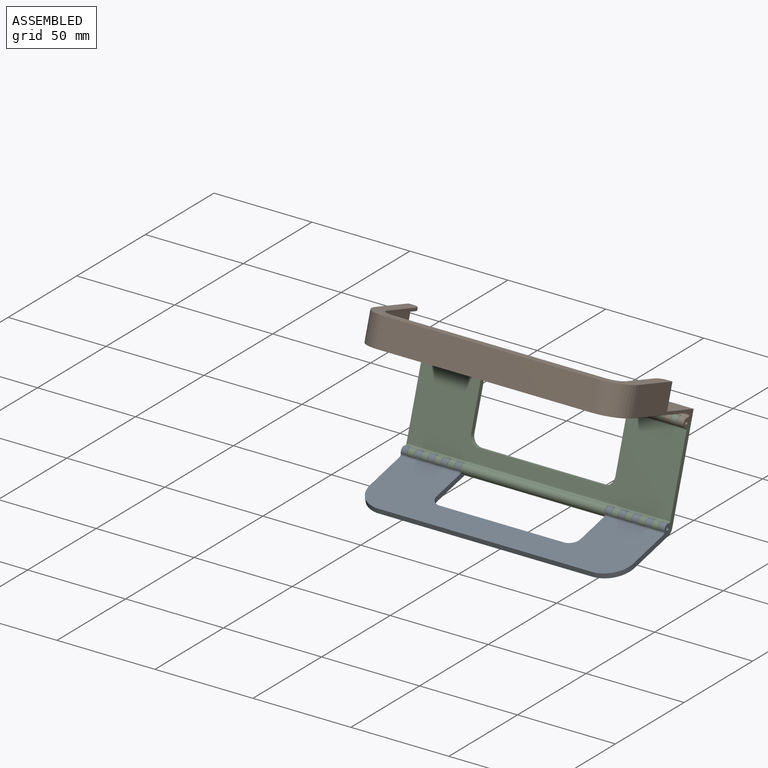
[diagram: assembled view]
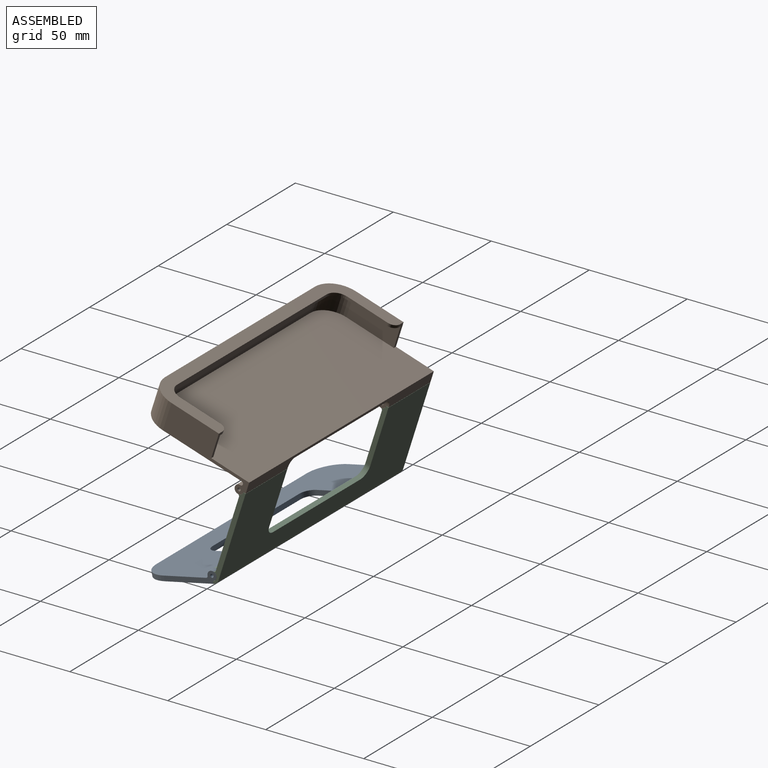
[diagram: assembled view, second angle]
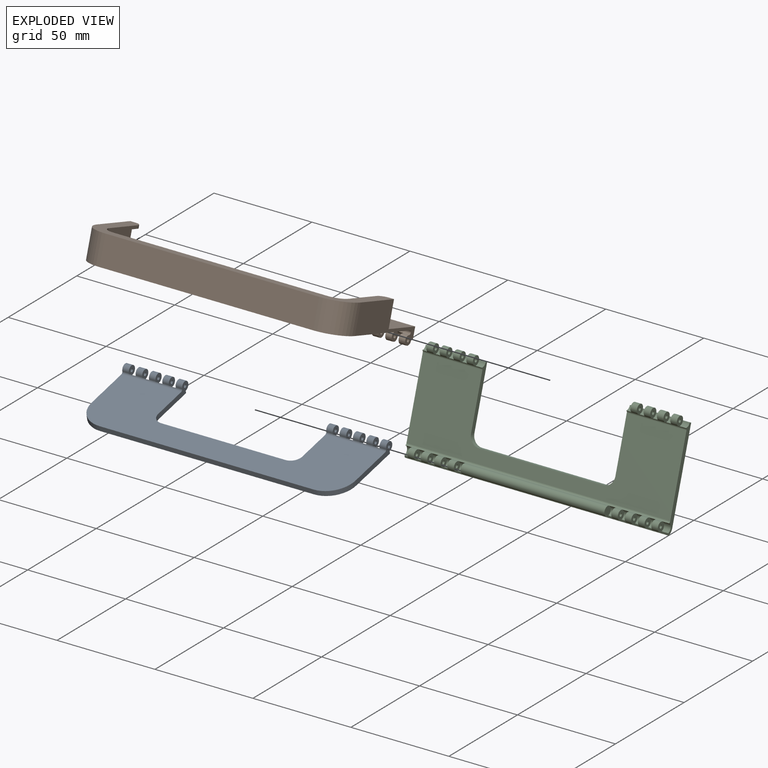
[diagram: exploded view]
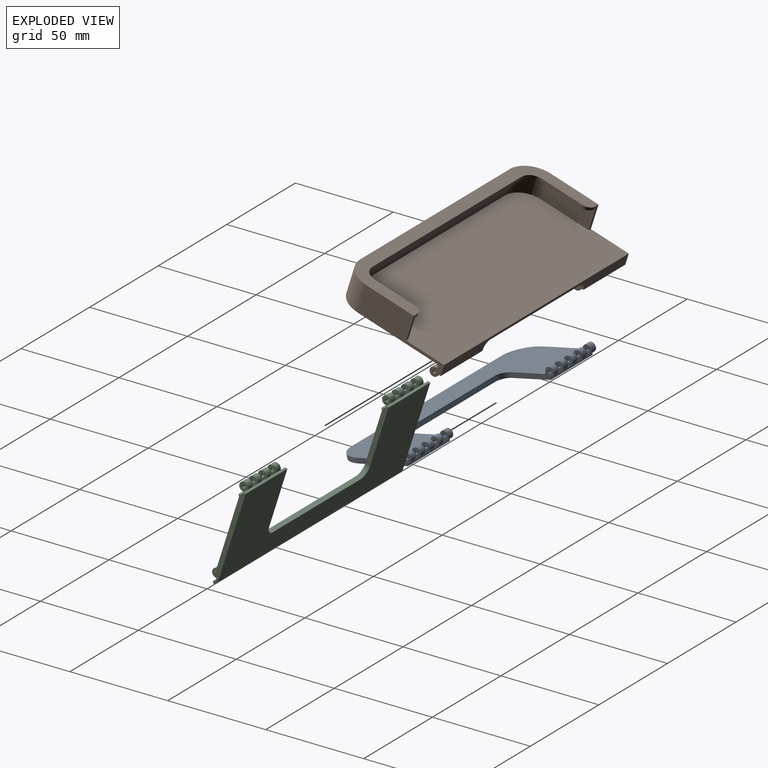
[diagram: exploded view, second angle]
ASSEMBLY  parts=3 mates=2
PART A: 70 faces, bbox 134.6x5.8x40.4 mm
  f0: plane 134.62x37.97mm, normal (0,1,0), area 3194.7mm2, adj f41,f43,f44,f51,f52,f53,f54,f65
  f1: cylinder r=0.84mm len=3.3mm, axis (-1,0,0), area 17.4mm2, adj f10,f52
  f2: cylinder r=2.29mm len=4.57mm, axis (-1,0,0), area 35.6mm2, adj f3,f10,f52,f55
  f3: cylinder r=1.02mm len=30.53mm, axis (-1,0,0), area 43.3mm2, adj f2,f7,f8,f9,f10,f11,f12,f13
  f4: cylinder r=0.84mm len=3.3mm, axis (-1,0,0), area 17.4mm2, adj f9,f14
  f5: cylinder r=0.84mm len=3.3mm, axis (-1,0,0), area 17.4mm2, adj f13,f18
  f6: cylinder r=0.84mm len=3.3mm, axis (-1,0,0), area 17.4mm2, adj f17,f49
  f7: cylinder r=2.29mm len=4.57mm, axis (-1,0,0), area 35.6mm2, adj f3,f9,f14,f59
  f8: cylinder r=2.39mm len=3.51mm, axis (-1,0,0), area 11.4mm2, adj f3,f9,f10,f54
  f9: plane 4.67x4.64mm, normal (1,0,0), area 14.5mm2, adj f3,f4,f7,f8,f54,f59
  f10: plane 4.67x4.64mm, normal (-1,0,0), area 14.5mm2, adj f1,f2,f3,f8,f54,f55
  f11: cylinder r=2.29mm len=4.57mm, axis (-1,0,0), area 35.6mm2, adj f3,f13,f18,f58
  f12: cylinder r=2.39mm len=3.51mm, axis (-1,0,0), area 11.4mm2, adj f3,f13,f14,f54
  f13: plane 4.67x4.64mm, normal (1,0,0), area 14.5mm2, adj f3,f5,f11,f12,f54,f58
  f14: plane 4.67x4.64mm, normal (-1,0,0), area 14.5mm2, adj f3,f4,f7,f12,f54,f59
  f15: cylinder r=2.29mm len=4.57mm, axis (-1,0,0), area 35.6mm2, adj f3,f17,f49,f57
  f16: cylinder r=2.39mm len=3.51mm, axis (-1,0,0), area 11.4mm2, adj f3,f17,f18,f54
  f17: plane 4.67x4.64mm, normal (1,0,0), area 14.5mm2, adj f3,f6,f15,f16,f54,f57
  f18: plane 4.67x4.64mm, normal (-1,0,0), area 14.5mm2, adj f3,f5,f11,f16,f54,f58
  f19: cylinder r=0.84mm len=3.3mm, axis (-1,0,0), area 17.4mm2, adj f28,f51
  f20: cylinder r=2.29mm len=4.57mm, axis (-1,0,0), area 35.6mm2, adj f21,f28,f51,f64
  f21: cylinder r=1.02mm len=30.53mm, axis (-1,0,0), area 43.3mm2, adj f20,f26,f27,f28,f29,f30,f31,f32
  f22: cylinder r=0.84mm len=3.3mm, axis (-1,0,0), area 17.4mm2, adj f31,f36
  f23: cylinder r=0.84mm len=3.3mm, axis (-1,0,0), area 17.4mm2, adj f27,f32
  f24: cylinder r=0.84mm len=3.3mm, axis (-1,0,0), area 17.4mm2, adj f44,f50
  f25: cylinder r=2.29mm len=4.57mm, axis (-1,0,0), area 35.6mm2, adj f3,f44,f50,f56
  f26: cylinder r=2.39mm len=3.51mm, axis (1,0,0), area 11.4mm2, adj f21,f27,f28,f65
  f27: plane 4.67x4.64mm, normal (-1,0,0), area 14.5mm2, adj f21,f23,f26,f29,f60,f65
  f28: plane 4.67x4.64mm, normal (1,0,0), area 14.5mm2, adj f19,f20,f21,f26,f64,f65
  f29: cylinder r=2.29mm len=4.57mm, axis (-1,0,0), area 35.6mm2, adj f21,f27,f32,f60
  f30: cylinder r=2.39mm len=3.51mm, axis (1,0,0), area 11.4mm2, adj f21,f31,f32,f65
  f31: plane 4.67x4.64mm, normal (-1,0,0), area 14.5mm2, adj f21,f22,f30,f33,f61,f65
  f32: plane 4.67x4.64mm, normal (1,0,0), area 14.5mm2, adj f21,f23,f29,f30,f60,f65
  f33: cylinder r=2.29mm len=4.57mm, axis (-1,0,0), area 35.6mm2, adj f21,f31,f36,f61
  f34: cylinder r=2.39mm len=3.51mm, axis (1,0,0), area 11.4mm2, adj f21,f35,f36,f65
  f35: plane 4.67x4.64mm, normal (-1,0,0), area 14.5mm2, adj f21,f34,f37,f38,f62,f65
  f36: plane 4.67x4.64mm, normal (1,0,0), area 14.5mm2, adj f21,f22,f33,f34,f61,f65
  f37: cylinder r=2.29mm len=4.57mm, axis (-1,0,0), area 35.6mm2, adj f21,f35,f46,f62
  f38: cylinder r=0.84mm len=3.3mm, axis (-1,0,0), area 17.4mm2, adj f35,f46
  f39: cylinder r=2.29mm len=4.57mm, axis (-1,0,0), area 35.6mm2, adj f21,f43,f47,f63
  f40: plane 134.62x34.8mm, normal (0,-1,0), area 3000.9mm2, adj f3,f21,f41,f43,f44,f51,f52,f53
  f41: plane 109.22x2.54mm, normal (0,0,-1), area 277.4mm2, adj f0,f40,f68,f69
  f42: cylinder r=0.84mm len=3.3mm, axis (-1,0,0), area 17.4mm2, adj f43,f47
  f43: plane 27.69x5.84mm, normal (1,0,0), area 77mm2, adj f0,f21,f39,f40,f42,f63,f65,f69
  f44: plane 27.69x5.84mm, normal (-1,0,0), area 77mm2, adj f0,f3,f24,f25,f40,f54,f56,f68
  f45: cylinder r=2.39mm len=3.51mm, axis (1,0,0), area 11.4mm2, adj f21,f46,f47,f65
  f46: plane 4.67x4.64mm, normal (1,0,0), area 14.5mm2, adj f21,f37,f38,f45,f62,f65
  f47: plane 4.67x4.64mm, normal (-1,0,0), area 14.5mm2, adj f21,f39,f42,f45,f63,f65
  f48: cylinder r=2.39mm len=3.51mm, axis (-1,0,0), area 11.4mm2, adj f3,f49,f50,f54
  f49: plane 4.67x4.64mm, normal (-1,0,0), area 14.5mm2, adj f3,f6,f15,f48,f54,f57
  f50: plane 4.67x4.64mm, normal (1,0,0), area 14.5mm2, adj f3,f24,f25,f48,f54,f56
  f51: plane 22.61x5.84mm, normal (-1,0,0), area 64.1mm2, adj f0,f19,f20,f21,f40,f64,f65,f67
  f52: plane 22.61x5.84mm, normal (1,0,0), area 64.1mm2, adj f0,f1,f2,f3,f40,f54,f55,f66
  f53: plane 63.4x2.54mm, normal (0,0,1), area 161mm2, adj f0,f40,f66,f67
  f54: plane 30.53x1.27mm, normal (0,0,1), area 37.4mm2, adj f0,f8,f9,f10,f12,f13,f14,f16
  f55: plane 3.3x0.13mm, normal (0,1,0), area 0.4mm2, adj f2,f10,f52,f54
  f56: plane 3.3x0.13mm, normal (0,1,0), area 0.4mm2, adj f25,f44,f50,f54
  f57: plane 3.3x0.13mm, normal (0,1,0), area 0.4mm2, adj f15,f17,f49,f54
  f58: plane 3.3x0.13mm, normal (0,1,0), area 0.4mm2, adj f11,f13,f18,f54
  f59: plane 3.3x0.13mm, normal (0,1,0), area 0.4mm2, adj f7,f9,f14,f54
  f60: plane 3.3x0.13mm, normal (0,1,0), area 0.4mm2, adj f27,f29,f32,f65
  f61: plane 3.3x0.13mm, normal (0,1,0), area 0.4mm2, adj f31,f33,f36,f65
  f62: plane 3.3x0.13mm, normal (0,1,0), area 0.4mm2, adj f35,f37,f46,f65
  f63: plane 3.3x0.13mm, normal (0,1,0), area 0.4mm2, adj f39,f43,f47,f65
  f64: plane 3.3x0.13mm, normal (0,1,0), area 0.4mm2, adj f20,f28,f51,f65
  f65: plane 30.53x1.27mm, normal (0,0,1), area 37.4mm2, adj f0,f26,f27,f28,f30,f31,f32,f34
  f66: cylinder r=5.08mm len=5.08mm, axis (0,-1,0), area 20.3mm2, adj f0,f40,f52,f53
  f67: cylinder r=5.08mm len=5.08mm, axis (0,1,0), area 20.3mm2, adj f0,f40,f51,f53
  f68: cylinder r=12.7mm len=12.7mm, axis (0,1,0), area 50.7mm2, adj f0,f40,f41,f44
  f69: cylinder r=12.7mm len=12.7mm, axis (0,-1,0), area 50.7mm2, adj f0,f40,f41,f43
PART B: 76 faces, bbox 134.6x21.1x58.4 mm
  f0: cylinder r=0.84mm len=3.3mm, axis (-1,0,0), area 17.4mm2, adj f6,f9
  f1: cylinder r=0.84mm len=3.3mm, axis (-1,0,0), area 17.4mm2, adj f10,f13
  f2: cylinder r=0.84mm len=3.3mm, axis (-1,0,0), area 17.4mm2, adj f14,f71
  f3: cylinder r=2.29mm len=4.57mm, axis (-1,0,0), area 35.6mm2, adj f6,f9,f62,f72
  f4: cylinder r=2.39mm len=3.51mm, axis (1,0,0), area 11.8mm2, adj f5,f6,f62,f72
  f5: plane 4.67x4.64mm, normal (-1,0,0), area 14.6mm2, adj f4,f15,f16,f62,f72
  f6: plane 4.67x4.64mm, normal (1,0,0), area 14.6mm2, adj f0,f3,f4,f62,f72
  f7: cylinder r=2.29mm len=4.57mm, axis (-1,0,0), area 35.6mm2, adj f10,f13,f62,f72
  f8: cylinder r=2.39mm len=3.51mm, axis (1,0,0), area 11.8mm2, adj f9,f10,f62,f72
  f9: plane 4.67x4.64mm, normal (-1,0,0), area 14.6mm2, adj f0,f3,f8,f62,f72
  f10: plane 4.67x4.64mm, normal (1,0,0), area 14.6mm2, adj f1,f7,f8,f62,f72
  f11: cylinder r=2.29mm len=4.57mm, axis (-1,0,0), area 35.6mm2, adj f14,f62,f71,f72
  f12: cylinder r=2.39mm len=3.51mm, axis (1,0,0), area 11.8mm2, adj f13,f14,f62,f72
  f13: plane 4.67x4.64mm, normal (-1,0,0), area 14.6mm2, adj f1,f7,f12,f62,f72
  f14: plane 4.67x4.64mm, normal (1,0,0), area 14.6mm2, adj f2,f11,f12,f62,f72
  f15: cylinder r=2.29mm len=4.57mm, axis (-1,0,0), area 35.7mm2, adj f5,f62,f65,f72,f74
  f16: cylinder r=0.84mm len=3.25mm, axis (-1,0,0), area 17.1mm2, adj f5,f65,f74
  f17: cylinder r=0.84mm len=3.3mm, axis (1,0,0), area 17.4mm2, adj f23,f26
  f18: cylinder r=0.84mm len=3.3mm, axis (1,0,0), area 17.4mm2, adj f27,f30
  f19: cylinder r=0.84mm len=3.3mm, axis (1,0,0), area 17.4mm2, adj f31,f68
  f20: cylinder r=2.29mm len=4.57mm, axis (1,0,0), area 35.6mm2, adj f23,f26,f59,f73
  f21: cylinder r=2.39mm len=3.51mm, axis (-1,0,0), area 11.8mm2, adj f22,f23,f59,f73
  f22: plane 4.67x4.64mm, normal (1,0,0), area 14.6mm2, adj f21,f32,f33,f59,f73
  f23: plane 4.67x4.64mm, normal (-1,0,0), area 14.6mm2, adj f17,f20,f21,f59,f73
  f24: cylinder r=2.29mm len=4.57mm, axis (1,0,0), area 35.6mm2, adj f27,f30,f59,f73
  f25: cylinder r=2.39mm len=3.51mm, axis (-1,0,0), area 11.8mm2, adj f26,f27,f59,f73
  f26: plane 4.67x4.64mm, normal (1,0,0), area 14.6mm2, adj f17,f20,f25,f59,f73
  f27: plane 4.67x4.64mm, normal (-1,0,0), area 14.6mm2, adj f18,f24,f25,f59,f73
  f28: cylinder r=2.29mm len=4.57mm, axis (1,0,0), area 35.6mm2, adj f31,f59,f68,f73
  f29: cylinder r=2.39mm len=3.51mm, axis (-1,0,0), area 11.8mm2, adj f30,f31,f59,f73
  f30: plane 4.67x4.64mm, normal (1,0,0), area 14.6mm2, adj f18,f24,f29,f59,f73
  f31: plane 4.67x4.64mm, normal (-1,0,0), area 14.6mm2, adj f19,f28,f29,f59,f73
  f32: cylinder r=2.29mm len=4.57mm, axis (1,0,0), area 35.7mm2, adj f22,f59,f61,f73,f75
  f33: cylinder r=0.84mm len=3.25mm, axis (1,0,0), area 17.1mm2, adj f22,f61,f75
  f34: plane 134.62x58.42mm, normal (0,1,0), area 7551.4mm2, adj f36,f37,f38,f39,f40,f41,f72,f73
  f35: plane 134.62x56.9mm, normal (0,-1,0), area 7494.2mm2, adj f37,f38,f39,f42,f43,f44,f45,f46
  f36: plane 109.22x14.48mm, normal (0,0,-1), area 1581.3mm2, adj f34,f40,f41,f54
  f37: plane 45.72x21.08mm, normal (1,0,0), area 422.5mm2, adj f34,f35,f38,f40,f43,f54,f58,f59
  f38: plane 134.62x5.84mm, normal (0,0,1), area 474.6mm2, adj f34,f35,f37,f39,f59,f61,f62,f65
  f39: plane 45.72x21.08mm, normal (-1,0,0), area 422.5mm2, adj f34,f35,f38,f41,f42,f54,f62,f63
  f40: cylinder r=12.7mm len=14.48mm, axis (0,-1,0), area 288.8mm2, adj f34,f36,f37,f54
  f41: cylinder r=12.7mm len=14.48mm, axis (0,1,0), area 288.8mm2, adj f34,f36,f39,f54
  f42: plane 12.95x2.54mm, normal (0,0,1), area 21.3mm2, adj f35,f39,f48,f54,f55,f57
  f43: plane 12.95x2.54mm, normal (0,0,1), area 21.3mm2, adj f35,f37,f44,f54,f55,f56
  f44: plane 25.4x11.43mm, normal (-1,0,0), area 290.3mm2, adj f35,f43,f45,f55
  f45: cylinder r=11.18mm len=11.43mm, axis (0,1,0), area 200.7mm2, adj f35,f44,f46,f55
  f46: plane 109.22x11.43mm, normal (0,0,1), area 1248.4mm2, adj f35,f45,f47,f55
  f47: cylinder r=11.18mm len=11.43mm, axis (0,1,0), area 200.7mm2, adj f35,f46,f48,f55
  f48: plane 25.4x11.43mm, normal (1,0,0), area 290.3mm2, adj f35,f42,f47,f55
  f49: plane 21.59x1.52mm, normal (-1,0,0), area 32.9mm2, adj f50,f54,f55,f56
  f50: cylinder r=6.35mm len=6.35mm, axis (0,1,0), area 15.2mm2, adj f49,f51,f54,f55
  f51: plane 109.22x1.52mm, normal (0,0,1), area 166.5mm2, adj f50,f52,f54,f55
  f52: cylinder r=6.35mm len=6.35mm, axis (0,1,0), area 15.2mm2, adj f51,f53,f54,f55
  f53: plane 21.59x1.52mm, normal (1,0,0), area 32.9mm2, adj f52,f54,f55,f57
  f54: plane 134.62x38.1mm, normal (0,-1,0), area 1199.9mm2, adj f36,f37,f39,f40,f41,f42,f43,f49
  f55: plane 131.57x36.58mm, normal (0,1,0), area 898.9mm2, adj f42,f43,f44,f45,f46,f47,f48,f49
  f56: cylinder r=3.81mm len=3.81mm, axis (0,1,0), area 9.1mm2, adj f43,f49,f54,f55
  f57: cylinder r=3.81mm len=3.81mm, axis (0,-1,0), area 9.1mm2, adj f42,f53,f54,f55
  f58: cylinder r=2.29mm len=4.57mm, axis (1,0,0), area 35.6mm2, adj f37,f59,f67,f73
  f59: plane 30.48x1.27mm, normal (0,1,0), area 37.3mm2, adj f20,f21,f22,f23,f24,f25,f26,f27
  f60: cylinder r=0.84mm len=3.3mm, axis (1,0,0), area 17.4mm2, adj f37,f67
  f61: plane 5.84x2.79mm, normal (-1,0,0), area 9.3mm2, adj f32,f33,f38,f59,f75
  f62: plane 30.48x1.27mm, normal (0,1,0), area 37.3mm2, adj f3,f4,f5,f6,f7,f8,f9,f10
  f63: cylinder r=2.29mm len=4.57mm, axis (-1,0,0), area 35.6mm2, adj f39,f62,f70,f72
  f64: cylinder r=0.84mm len=3.3mm, axis (-1,0,0), area 17.4mm2, adj f39,f70
  f65: plane 5.84x2.79mm, normal (1,0,0), area 9.3mm2, adj f15,f16,f38,f62,f74
  f66: cylinder r=2.39mm len=3.51mm, axis (-1,0,0), area 11.8mm2, adj f59,f67,f68,f73
  f67: plane 4.67x4.64mm, normal (-1,0,0), area 14.6mm2, adj f58,f59,f60,f66,f73
  f68: plane 4.67x4.64mm, normal (1,0,0), area 14.6mm2, adj f19,f28,f59,f66,f73
  f69: cylinder r=2.39mm len=3.51mm, axis (1,0,0), area 11.8mm2, adj f62,f70,f71,f72
  f70: plane 4.67x4.64mm, normal (1,0,0), area 14.6mm2, adj f62,f63,f64,f69,f72
  f71: plane 4.67x4.64mm, normal (-1,0,0), area 14.6mm2, adj f2,f11,f62,f69,f72
  f72: cylinder r=1.02mm len=34.29mm, axis (1,0,0), area 96.8mm2, adj f3,f4,f5,f6,f7,f8,f9,f10
  f73: cylinder r=1.02mm len=34.29mm, axis (-1,0,0), area 96.8mm2, adj f20,f21,f22,f23,f24,f25,f26,f27
  f74: cylinder r=3.81mm len=5.79mm, axis (0,0,-1), area 21.2mm2, adj f15,f16,f34,f38,f65,f72
  f75: cylinder r=3.81mm len=5.79mm, axis (0,0,-1), area 21.2mm2, adj f32,f33,f34,f38,f61,f73
PART C: 111 faces, bbox 134.6x51.1x5.9 mm
  f0: plane 48.67x3.29mm, normal (1,0,0), area 116.3mm2, adj f4,f31,f32,f54,f67,f68,f69,f71
  f1: plane 48.67x3.29mm, normal (-1,0,0), area 116.3mm2, adj f17,f31,f32,f33,f67,f68,f69,f85
  f2: plane 30.61x3.29mm, normal (1,0,0), area 76.2mm2, adj f29,f33,f67,f68,f99,f110
  f3: plane 30.61x3.29mm, normal (-1,0,0), area 76.2mm2, adj f16,f54,f67,f68,f108,f109
  f4: cylinder r=2.34mm len=3.4mm, axis (1,0,0), area 11.2mm2, adj f0,f5,f54,f108
  f5: plane 4.62x4.61mm, normal (1,0,0), area 14.4mm2, adj f4,f54,f63,f65,f104,f108
  f6: cylinder r=2.34mm len=3.51mm, axis (1,0,0), area 11.5mm2, adj f7,f8,f54,f108
  f7: plane 4.62x4.61mm, normal (1,0,0), area 14.4mm2, adj f6,f54,f59,f61,f105,f108
  f8: plane 4.62x4.61mm, normal (-1,0,0), area 14.4mm2, adj f6,f54,f63,f65,f104,f108
  f9: cylinder r=2.34mm len=3.51mm, axis (1,0,0), area 11.5mm2, adj f10,f11,f54,f108
  f10: plane 4.62x4.61mm, normal (1,0,0), area 14.4mm2, adj f9,f54,f55,f57,f106,f108
  f11: plane 4.62x4.61mm, normal (-1,0,0), area 14.4mm2, adj f9,f54,f59,f61,f105,f108
  f12: cylinder r=2.34mm len=3.51mm, axis (1,0,0), area 11.5mm2, adj f13,f14,f54,f108
  f13: plane 4.62x4.61mm, normal (1,0,0), area 14.4mm2, adj f12,f50,f52,f54,f107,f108
  f14: plane 4.62x4.61mm, normal (-1,0,0), area 14.4mm2, adj f12,f54,f55,f57,f106,f108
  f15: plane 4.62x4.61mm, normal (-1,0,0), area 14.4mm2, adj f16,f50,f52,f54,f107,f108
  f16: cylinder r=2.34mm len=3.35mm, axis (1,0,0), area 11mm2, adj f3,f15,f54,f108
  f17: cylinder r=2.34mm len=3.4mm, axis (-1,0,0), area 11.2mm2, adj f1,f18,f33,f99
  f18: plane 4.62x4.61mm, normal (-1,0,0), area 14.4mm2, adj f17,f33,f48,f49,f99,f103
  f19: cylinder r=2.34mm len=3.51mm, axis (-1,0,0), area 11.5mm2, adj f20,f21,f33,f99
  f20: plane 4.62x4.61mm, normal (-1,0,0), area 14.4mm2, adj f19,f33,f44,f45,f99,f102
  f21: plane 4.62x4.61mm, normal (1,0,0), area 14.4mm2, adj f19,f33,f48,f49,f99,f103
  f22: cylinder r=2.34mm len=3.51mm, axis (-1,0,0), area 11.5mm2, adj f23,f24,f33,f99
  f23: plane 4.62x4.61mm, normal (-1,0,0), area 14.4mm2, adj f22,f33,f40,f41,f99,f101
  f24: plane 4.62x4.61mm, normal (1,0,0), area 14.4mm2, adj f22,f33,f44,f45,f99,f102
  f25: cylinder r=2.34mm len=3.51mm, axis (-1,0,0), area 11.5mm2, adj f26,f27,f33,f99
  f26: plane 4.62x4.61mm, normal (-1,0,0), area 14.4mm2, adj f25,f33,f36,f37,f99,f100
  f27: plane 4.62x4.61mm, normal (1,0,0), area 14.4mm2, adj f25,f33,f40,f41,f99,f101
  f28: plane 4.62x4.61mm, normal (1,0,0), area 14.4mm2, adj f29,f33,f36,f37,f99,f100
  f29: cylinder r=2.34mm len=3.35mm, axis (-1,0,0), area 11mm2, adj f2,f28,f33,f99
  f30: cylinder r=2.34mm len=4.35mm, axis (1,0,0), area 20.5mm2, adj f31,f32,f95,f97
  f31: plane 134.62x1.1mm, normal (0,0.5,-0.87), area 165.5mm2, adj f0,f1,f30,f34,f38,f42,f46,f51
  f32: cylinder r=1.02mm len=134.62mm, axis (1,0,0), area 185.7mm2, adj f0,f1,f30,f34,f38,f42,f46,f51
  f33: cylinder r=1.02mm len=30.48mm, axis (1,0,0), area 44mm2, adj f1,f2,f17,f18,f19,f20,f21,f22
  f34: cylinder r=2.29mm len=4.57mm, axis (-1,0,0), area 27.7mm2, adj f31,f32,f93,f95
  f35: cylinder r=0.84mm len=3.3mm, axis (-1,0,0), area 17.4mm2, adj f93,f95
  f36: cylinder r=2.29mm len=4.57mm, axis (-1,0,0), area 35.6mm2, adj f26,f28,f33,f100
  f37: cylinder r=0.84mm len=3.3mm, axis (-1,0,0), area 17.4mm2, adj f26,f28
  f38: cylinder r=2.29mm len=4.57mm, axis (-1,0,0), area 27.7mm2, adj f31,f32,f90,f94
  f39: cylinder r=0.84mm len=3.3mm, axis (-1,0,0), area 17.4mm2, adj f90,f94
  f40: cylinder r=2.29mm len=4.57mm, axis (-1,0,0), area 35.6mm2, adj f23,f27,f33,f101
  f41: cylinder r=0.84mm len=3.3mm, axis (-1,0,0), area 17.4mm2, adj f23,f27
  f42: cylinder r=2.29mm len=4.57mm, axis (-1,0,0), area 27.7mm2, adj f31,f32,f87,f91
  f43: cylinder r=0.84mm len=3.3mm, axis (-1,0,0), area 17.4mm2, adj f87,f91
  f44: cylinder r=2.29mm len=4.57mm, axis (-1,0,0), area 35.6mm2, adj f20,f24,f33,f102
  f45: cylinder r=0.84mm len=3.3mm, axis (-1,0,0), area 17.4mm2, adj f20,f24
  f46: cylinder r=2.29mm len=4.57mm, axis (-1,0,0), area 27.7mm2, adj f31,f32,f84,f88
  f47: cylinder r=0.84mm len=3.3mm, axis (-1,0,0), area 17.4mm2, adj f84,f88
  f48: cylinder r=2.29mm len=4.57mm, axis (-1,0,0), area 35.6mm2, adj f18,f21,f33,f103
  f49: cylinder r=0.84mm len=3.3mm, axis (-1,0,0), area 17.4mm2, adj f18,f21
  f50: cylinder r=2.29mm len=4.57mm, axis (-1,0,0), area 35.6mm2, adj f13,f15,f54,f107
  f51: cylinder r=2.29mm len=4.57mm, axis (-1,0,0), area 27.7mm2, adj f31,f32,f80,f83
  f52: cylinder r=0.84mm len=3.3mm, axis (-1,0,0), area 17.4mm2, adj f13,f15
  f53: cylinder r=0.84mm len=3.3mm, axis (-1,0,0), area 17.4mm2, adj f80,f83
  f54: cylinder r=1.02mm len=30.48mm, axis (1,0,0), area 44mm2, adj f0,f3,f4,f5,f6,f7,f8,f9
  f55: cylinder r=2.29mm len=4.57mm, axis (-1,0,0), area 35.6mm2, adj f10,f14,f54,f106
  f56: cylinder r=2.29mm len=4.57mm, axis (-1,0,0), area 27.7mm2, adj f31,f32,f77,f81
  f57: cylinder r=0.84mm len=3.3mm, axis (-1,0,0), area 17.4mm2, adj f10,f14
  f58: cylinder r=0.84mm len=3.3mm, axis (-1,0,0), area 17.4mm2, adj f77,f81
  f59: cylinder r=2.29mm len=4.57mm, axis (-1,0,0), area 35.6mm2, adj f7,f11,f54,f105
  f60: cylinder r=2.29mm len=4.57mm, axis (-1,0,0), area 27.7mm2, adj f31,f32,f74,f78
  f61: cylinder r=0.84mm len=3.3mm, axis (-1,0,0), area 17.4mm2, adj f7,f11
  f62: cylinder r=0.84mm len=3.3mm, axis (-1,0,0), area 17.4mm2, adj f74,f78
  f63: cylinder r=2.29mm len=4.57mm, axis (-1,0,0), area 35.6mm2, adj f5,f8,f54,f104
  f64: cylinder r=2.29mm len=4.57mm, axis (-1,0,0), area 27.7mm2, adj f31,f32,f72,f75
  f65: cylinder r=0.84mm len=3.3mm, axis (-1,0,0), area 17.4mm2, adj f5,f8
  f66: cylinder r=0.84mm len=3.3mm, axis (-1,0,0), area 17.4mm2, adj f72,f75
  f67: plane 134.62x45.59mm, normal (0,0,1), area 3520.1mm2, adj f0,f1,f2,f3,f69,f70,f99,f108
  f68: plane 134.62x39.12mm, normal (0,0,-1), area 2882mm2, adj f0,f1,f2,f3,f32,f33,f54,f70
  f69: cylinder r=3.56mm len=134.62mm, axis (-1,0,0), area 501.3mm2, adj f0,f1,f31,f67
  f70: plane 63.5x2.54mm, normal (0,-1,0), area 161.3mm2, adj f67,f68,f109,f110
  f71: cylinder r=2.34mm len=4.35mm, axis (1,0,0), area 19.9mm2, adj f0,f31,f32,f72
  f72: plane 4.62x4.61mm, normal (1,0,0), area 14.5mm2, adj f31,f32,f64,f66,f71
  f73: cylinder r=2.34mm len=4.35mm, axis (1,0,0), area 20.5mm2, adj f31,f32,f74,f75
  f74: plane 4.62x4.61mm, normal (1,0,0), area 14.5mm2, adj f31,f32,f60,f62,f73
  f75: plane 4.62x4.61mm, normal (-1,0,0), area 14.5mm2, adj f31,f32,f64,f66,f73
  f76: cylinder r=2.34mm len=4.35mm, axis (1,0,0), area 20.5mm2, adj f31,f32,f77,f78
  f77: plane 4.62x4.61mm, normal (1,0,0), area 14.5mm2, adj f31,f32,f56,f58,f76
  f78: plane 4.62x4.61mm, normal (-1,0,0), area 14.5mm2, adj f31,f32,f60,f62,f76
  f79: cylinder r=2.34mm len=4.35mm, axis (1,0,0), area 20.5mm2, adj f31,f32,f80,f81
  f80: plane 4.62x4.61mm, normal (1,0,0), area 14.5mm2, adj f31,f32,f51,f53,f79
  f81: plane 4.62x4.61mm, normal (-1,0,0), area 14.5mm2, adj f31,f32,f56,f58,f79
  f82: cylinder r=2.34mm len=4.35mm, axis (1,0,0), area 20.5mm2, adj f31,f32,f83,f98
  f83: plane 4.62x4.61mm, normal (-1,0,0), area 14.5mm2, adj f31,f32,f51,f53,f82
  f84: plane 4.62x4.61mm, normal (-1,0,0), area 14.5mm2, adj f31,f32,f46,f47,f85
  f85: cylinder r=2.34mm len=4.35mm, axis (-1,0,0), area 19.9mm2, adj f1,f31,f32,f84
  f86: cylinder r=2.34mm len=4.35mm, axis (-1,0,0), area 20.5mm2, adj f31,f32,f87,f88
  f87: plane 4.62x4.61mm, normal (-1,0,0), area 14.5mm2, adj f31,f32,f42,f43,f86
  f88: plane 4.62x4.61mm, normal (1,0,0), area 14.5mm2, adj f31,f32,f46,f47,f86
  f89: cylinder r=2.34mm len=4.35mm, axis (-1,0,0), area 20.5mm2, adj f31,f32,f90,f91
  f90: plane 4.62x4.61mm, normal (-1,0,0), area 14.5mm2, adj f31,f32,f38,f39,f89
  f91: plane 4.62x4.61mm, normal (1,0,0), area 14.5mm2, adj f31,f32,f42,f43,f89
  f92: cylinder r=2.34mm len=4.35mm, axis (-1,0,0), area 20.5mm2, adj f31,f32,f93,f94
  f93: plane 4.62x4.61mm, normal (-1,0,0), area 14.5mm2, adj f31,f32,f34,f35,f92
  f94: plane 4.62x4.61mm, normal (1,0,0), area 14.5mm2, adj f31,f32,f38,f39,f92
  f95: plane 4.62x4.61mm, normal (1,0,0), area 14.5mm2, adj f30,f31,f32,f34,f35
  f96: cylinder r=2.34mm len=73.36mm, axis (1,0,0), area 647.9mm2, adj f31,f32,f97,f98
  f97: plane 4.67x4.67mm, normal (-1,0,0), area 17.2mm2, adj f30,f96
  f98: plane 4.67x4.67mm, normal (1,0,0), area 17.2mm2, adj f82,f96
  f99: plane 30.48x1.27mm, normal (0,-1,0), area 37.9mm2, adj f1,f2,f17,f18,f19,f20,f21,f22
  f100: plane 3.3x0.13mm, normal (0,0,1), area 0.4mm2, adj f26,f28,f36,f99
  f101: plane 3.3x0.13mm, normal (0,0,1), area 0.4mm2, adj f23,f27,f40,f99
  f102: plane 3.3x0.13mm, normal (0,0,1), area 0.4mm2, adj f20,f24,f44,f99
  f103: plane 3.3x0.13mm, normal (0,0,1), area 0.4mm2, adj f18,f21,f48,f99
  f104: plane 3.3x0.13mm, normal (0,0,1), area 0.4mm2, adj f5,f8,f63,f108
  f105: plane 3.3x0.13mm, normal (0,0,1), area 0.4mm2, adj f7,f11,f59,f108
  f106: plane 3.3x0.13mm, normal (0,0,1), area 0.4mm2, adj f10,f14,f55,f108
  f107: plane 3.3x0.13mm, normal (0,0,1), area 0.4mm2, adj f13,f15,f50,f108
  f108: plane 30.48x1.27mm, normal (0,-1,0), area 37.9mm2, adj f0,f3,f4,f5,f6,f7,f8,f9
  f109: cylinder r=5.08mm len=5.08mm, axis (0,0,1), area 20.3mm2, adj f3,f67,f68,f70
  f110: cylinder r=5.08mm len=5.08mm, axis (0,0,-1), area 20.3mm2, adj f2,f67,f68,f70
PLACE A rot(axis=(-1,0,0),77.6deg) t=(-4.02,-52.48,46.79)mm
PLACE B rot(axis=(-1,0,0),107.6deg) t=(-4.02,-25.3,73.97)mm
PLACE C rot(axis=(-1,0,0),107.6deg) t=(-4.02,-25.3,73.97)mm
MATE revolute A.f1 <-> C.f30  axis (-1,0,0) through (61.64,11.84,9.67)mm
MATE revolute C.f4 <-> B.f0  axis (-1,0,0) through (58.24,25.68,53.25)mm
